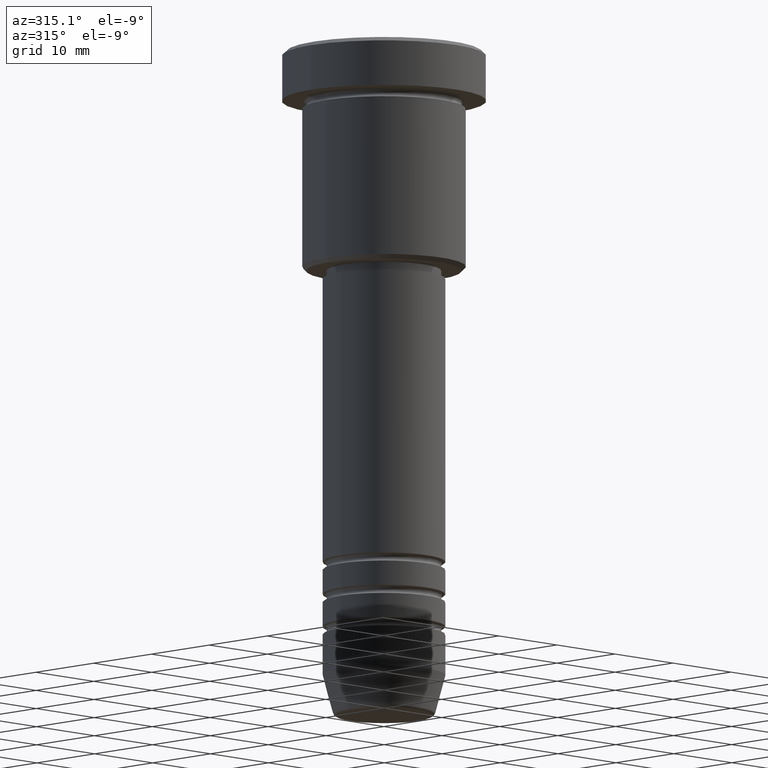
[diagram: clean part render]
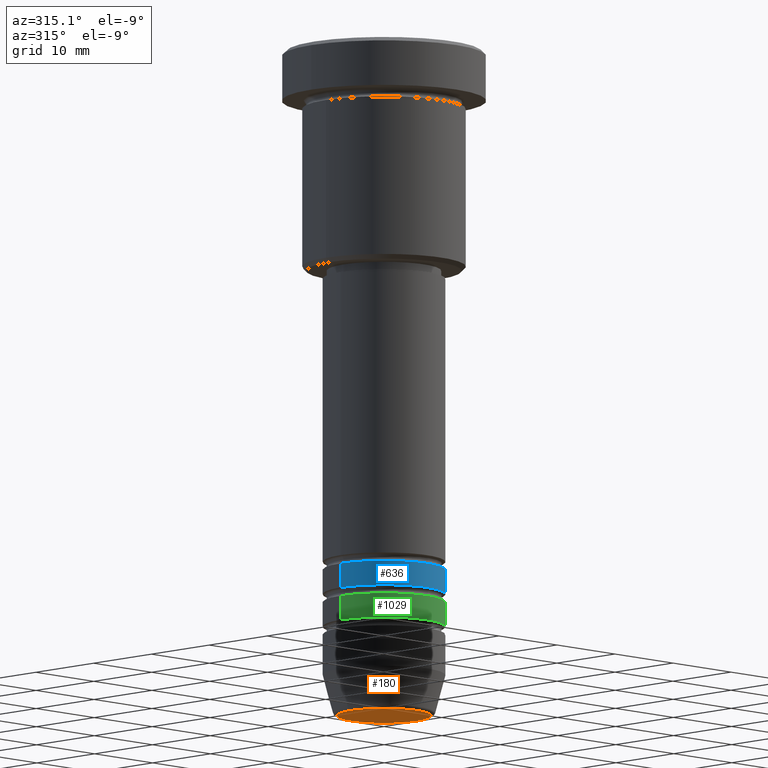
[diagram: same view with three faces highlighted in distinct colors, each labeled with its STEP entity id]
A machine part, auxiliary view with three faces highlighted in distinct colors.
Their STEP definitions:

[orange] entity #180 — the highlighted planar face has unit normal (0, -0, 1).
#3 = ORIENTED_EDGE ( 'NONE', *, *, #707, .T. ) ;
#52 = DIRECTION ( 'NONE',  ( 1.000000000000000000, 0.000000000000000000, 0.000000000000000000 ) ) ;
#78 = CARTESIAN_POINT ( 'NONE',  ( 0.000000000000000000, 0.000000000000000000, -81.99999999999998579 ) ) ;
#151 = ORIENTED_EDGE ( 'NONE', *, *, #347, .T. ) ;
#160 = CIRCLE ( 'NONE', #839, 5.776590543854905668 ) ;
#176 = DIRECTION ( 'NONE',  ( 1.000000000000000000, 0.000000000000000000, 0.000000000000000000 ) ) ;
#180 = ADVANCED_FACE ( 'NONE', ( #596 ), #238, .F. ) ;
#234 = VERTEX_POINT ( 'NONE', #1012 ) ;
#238 = PLANE ( 'NONE',  #837 ) ;
#239 = DIRECTION ( 'NONE',  ( 1.000000000000000000, 0.000000000000000000, 0.000000000000000000 ) ) ;
#347 = EDGE_CURVE ( 'NONE', #234, #972, #160, .T. ) ;
#367 = CARTESIAN_POINT ( 'NONE',  ( 0.000000000000000000, 0.000000000000000000, -81.99999999999998579 ) ) ;
#381 = EDGE_LOOP ( 'NONE', ( #3, #151 ) ) ;
#449 = DIRECTION ( 'NONE',  ( 0.000000000000000000, 0.000000000000000000, -1.000000000000000000 ) ) ;
#515 = CARTESIAN_POINT ( 'NONE',  ( 0.000000000000000000, 0.000000000000000000, -81.99999999999998579 ) ) ;
#596 = FACE_OUTER_BOUND ( 'NONE', #381, .T. ) ;
#703 = AXIS2_PLACEMENT_3D ( 'NONE', #78, #449, #239 ) ;
#707 = EDGE_CURVE ( 'NONE', #972, #234, #1144, .T. ) ;
#837 = AXIS2_PLACEMENT_3D ( 'NONE', #515, #881, #52 ) ;
#839 = AXIS2_PLACEMENT_3D ( 'NONE', #367, #1028, #176 ) ;
#880 = CARTESIAN_POINT ( 'NONE',  ( 5.776590543854905668, 0.000000000000000000, -81.99999999999998579 ) ) ;
#881 = DIRECTION ( 'NONE',  ( 0.000000000000000000, -0.000000000000000000, 1.000000000000000000 ) ) ;
#972 = VERTEX_POINT ( 'NONE', #880 ) ;
#1012 = CARTESIAN_POINT ( 'NONE',  ( -5.776590543854905668, 7.370012612361445601E-16, -81.99999999999998579 ) ) ;
#1028 = DIRECTION ( 'NONE',  ( 0.000000000000000000, 0.000000000000000000, -1.000000000000000000 ) ) ;
#1144 = CIRCLE ( 'NONE', #703, 5.776590543854905668 ) ;

[blue] entity #636 — the highlighted cylindrical surface (partial cylindrical patch) has radius 7.5 mm, axis along (-0, -0, 1).
#56 = EDGE_CURVE ( 'NONE', #416, #562, #746, .T. ) ;
#94 = EDGE_CURVE ( 'NONE', #642, #416, #328, .T. ) ;
#100 = CARTESIAN_POINT ( 'NONE',  ( -7.500000000000000000, 9.184850993605147944E-16, -63.99999999999989342 ) ) ;
#122 = DIRECTION ( 'NONE',  ( 1.000000000000000000, 0.000000000000000000, 0.000000000000000000 ) ) ;
#127 = CARTESIAN_POINT ( 'NONE',  ( -7.500000000000001776, 9.184850993605149917E-16, 0.000000000000000000 ) ) ;
#144 = EDGE_CURVE ( 'NONE', #642, #325, #967, .T. ) ;
#184 = CARTESIAN_POINT ( 'NONE',  ( 7.500000000000002665, 0.000000000000000000, -66.99999999999990052 ) ) ;
#212 = CYLINDRICAL_SURFACE ( 'NONE', #455, 7.500000000000001776 ) ;
#217 = DIRECTION ( 'NONE',  ( 1.000000000000000000, 0.000000000000000000, 0.000000000000000000 ) ) ;
#227 = AXIS2_PLACEMENT_3D ( 'NONE', #228, #531, #217 ) ;
#228 = CARTESIAN_POINT ( 'NONE',  ( 0.000000000000000000, 0.000000000000000000, -66.99999999999990052 ) ) ;
#274 = AXIS2_PLACEMENT_3D ( 'NONE', #960, #1150, #899 ) ;
#325 = VERTEX_POINT ( 'NONE', #184 ) ;
#328 = LINE ( 'NONE', #127, #1123 ) ;
#374 = VECTOR ( 'NONE', #1002, 1000.000000000000000 ) ;
#416 = VERTEX_POINT ( 'NONE', #100 ) ;
#455 = AXIS2_PLACEMENT_3D ( 'NONE', #588, #955, #122 ) ;
#501 = CARTESIAN_POINT ( 'NONE',  ( -7.500000000000003553, 9.184850993605151889E-16, -66.99999999999990052 ) ) ;
#531 = DIRECTION ( 'NONE',  ( -0.000000000000000000, -0.000000000000000000, 1.000000000000000000 ) ) ;
#562 = VERTEX_POINT ( 'NONE', #690 ) ;
#588 = CARTESIAN_POINT ( 'NONE',  ( 0.000000000000000000, 0.000000000000000000, 0.000000000000000000 ) ) ;
#607 = DIRECTION ( 'NONE',  ( -0.000000000000000000, -0.000000000000000000, 1.000000000000000000 ) ) ;
#636 = ADVANCED_FACE ( 'NONE', ( #1047 ), #212, .T. ) ;
#642 = VERTEX_POINT ( 'NONE', #501 ) ;
#690 = CARTESIAN_POINT ( 'NONE',  ( 7.500000000000000000, 0.000000000000000000, -63.99999999999989342 ) ) ;
#746 = CIRCLE ( 'NONE', #274, 7.500000000000000000 ) ;
#822 = ORIENTED_EDGE ( 'NONE', *, *, #56, .F. ) ;
#897 = EDGE_CURVE ( 'NONE', #325, #562, #961, .T. ) ;
#899 = DIRECTION ( 'NONE',  ( 1.000000000000000000, 0.000000000000000000, 0.000000000000000000 ) ) ;
#955 = DIRECTION ( 'NONE',  ( -0.000000000000000000, -0.000000000000000000, 1.000000000000000000 ) ) ;
#960 = CARTESIAN_POINT ( 'NONE',  ( 0.000000000000000000, 0.000000000000000000, -63.99999999999989342 ) ) ;
#961 = LINE ( 'NONE', #981, #374 ) ;
#963 = EDGE_LOOP ( 'NONE', ( #1034, #1165, #985, #822 ) ) ;
#967 = CIRCLE ( 'NONE', #227, 7.500000000000002665 ) ;
#981 = CARTESIAN_POINT ( 'NONE',  ( 7.500000000000001776, 0.000000000000000000, 0.000000000000000000 ) ) ;
#985 = ORIENTED_EDGE ( 'NONE', *, *, #897, .T. ) ;
#1002 = DIRECTION ( 'NONE',  ( -0.000000000000000000, -0.000000000000000000, 1.000000000000000000 ) ) ;
#1034 = ORIENTED_EDGE ( 'NONE', *, *, #94, .F. ) ;
#1047 = FACE_OUTER_BOUND ( 'NONE', #963, .T. ) ;
#1123 = VECTOR ( 'NONE', #607, 1000.000000000000000 ) ;
#1150 = DIRECTION ( 'NONE',  ( -0.000000000000000000, -0.000000000000000000, 1.000000000000000000 ) ) ;
#1165 = ORIENTED_EDGE ( 'NONE', *, *, #144, .T. ) ;

[green] entity #1029 — the highlighted cylindrical surface (partial cylindrical patch) has radius 7.5 mm, axis along (-0, -0, 1).
#18 = LINE ( 'NONE', #774, #876 ) ;
#55 = DIRECTION ( 'NONE',  ( -0.000000000000000000, -0.000000000000000000, 1.000000000000000000 ) ) ;
#80 = CARTESIAN_POINT ( 'NONE',  ( 7.500000000000000888, 0.000000000000000000, -70.99999999999988631 ) ) ;
#85 = DIRECTION ( 'NONE',  ( -0.000000000000000000, -0.000000000000000000, 1.000000000000000000 ) ) ;
#87 = DIRECTION ( 'NONE',  ( -0.000000000000000000, -0.000000000000000000, 1.000000000000000000 ) ) ;
#142 = DIRECTION ( 'NONE',  ( -0.000000000000000000, -0.000000000000000000, 1.000000000000000000 ) ) ;
#169 = CARTESIAN_POINT ( 'NONE',  ( 0.000000000000000000, 0.000000000000000000, -70.99999999999988631 ) ) ;
#175 = CARTESIAN_POINT ( 'NONE',  ( -7.500000000000001776, 9.184850993605149917E-16, -70.99999999999988631 ) ) ;
#187 = EDGE_CURVE ( 'NONE', #890, #492, #773, .T. ) ;
#321 = EDGE_CURVE ( 'NONE', #956, #922, #894, .T. ) ;
#432 = AXIS2_PLACEMENT_3D ( 'NONE', #169, #87, #740 ) ;
#468 = FACE_OUTER_BOUND ( 'NONE', #1136, .T. ) ;
#478 = VECTOR ( 'NONE', #85, 1000.000000000000000 ) ;
#492 = VERTEX_POINT ( 'NONE', #1037 ) ;
#523 = EDGE_CURVE ( 'NONE', #922, #492, #18, .T. ) ;
#548 = CARTESIAN_POINT ( 'NONE',  ( -7.500000000000000000, 9.184850993605147944E-16, -67.99999999999990052 ) ) ;
#556 = CARTESIAN_POINT ( 'NONE',  ( -7.500000000000000000, 9.184850993605147944E-16, 0.000000000000000000 ) ) ;
#740 = DIRECTION ( 'NONE',  ( 1.000000000000000000, 0.000000000000000000, 0.000000000000000000 ) ) ;
#755 = DIRECTION ( 'NONE',  ( 1.000000000000000000, 0.000000000000000000, 0.000000000000000000 ) ) ;
#760 = AXIS2_PLACEMENT_3D ( 'NONE', #974, #142, #887 ) ;
#764 = DIRECTION ( 'NONE',  ( -0.000000000000000000, -0.000000000000000000, 1.000000000000000000 ) ) ;
#773 = CIRCLE ( 'NONE', #760, 7.500000000000000000 ) ;
#774 = CARTESIAN_POINT ( 'NONE',  ( 7.500000000000000000, 0.000000000000000000, 0.000000000000000000 ) ) ;
#874 = ORIENTED_EDGE ( 'NONE', *, *, #321, .T. ) ;
#876 = VECTOR ( 'NONE', #55, 1000.000000000000000 ) ;
#887 = DIRECTION ( 'NONE',  ( 1.000000000000000000, 0.000000000000000000, 0.000000000000000000 ) ) ;
#890 = VERTEX_POINT ( 'NONE', #548 ) ;
#894 = CIRCLE ( 'NONE', #432, 7.500000000000000888 ) ;
#922 = VERTEX_POINT ( 'NONE', #80 ) ;
#951 = AXIS2_PLACEMENT_3D ( 'NONE', #1021, #764, #755 ) ;
#956 = VERTEX_POINT ( 'NONE', #175 ) ;
#974 = CARTESIAN_POINT ( 'NONE',  ( 0.000000000000000000, 0.000000000000000000, -67.99999999999990052 ) ) ;
#978 = ORIENTED_EDGE ( 'NONE', *, *, #523, .T. ) ;
#1006 = EDGE_CURVE ( 'NONE', #956, #890, #1018, .T. ) ;
#1018 = LINE ( 'NONE', #556, #478 ) ;
#1021 = CARTESIAN_POINT ( 'NONE',  ( 0.000000000000000000, 0.000000000000000000, 0.000000000000000000 ) ) ;
#1027 = CYLINDRICAL_SURFACE ( 'NONE', #951, 7.500000000000000000 ) ;
#1029 = ADVANCED_FACE ( 'NONE', ( #468 ), #1027, .T. ) ;
#1037 = CARTESIAN_POINT ( 'NONE',  ( 7.500000000000000000, 0.000000000000000000, -67.99999999999990052 ) ) ;
#1099 = ORIENTED_EDGE ( 'NONE', *, *, #187, .F. ) ;
#1120 = ORIENTED_EDGE ( 'NONE', *, *, #1006, .F. ) ;
#1136 = EDGE_LOOP ( 'NONE', ( #1120, #874, #978, #1099 ) ) ;